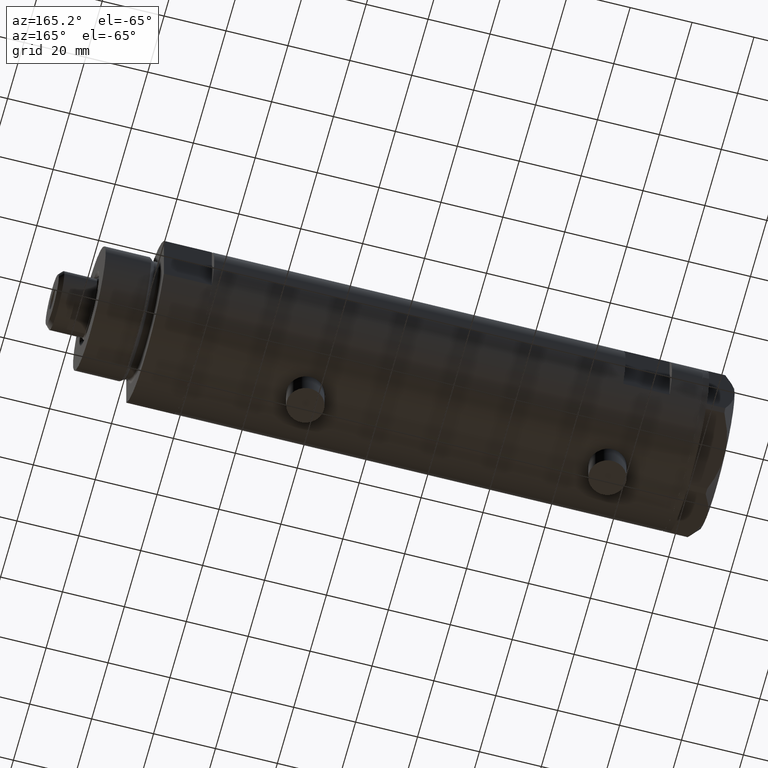
[diagram: clean part render]
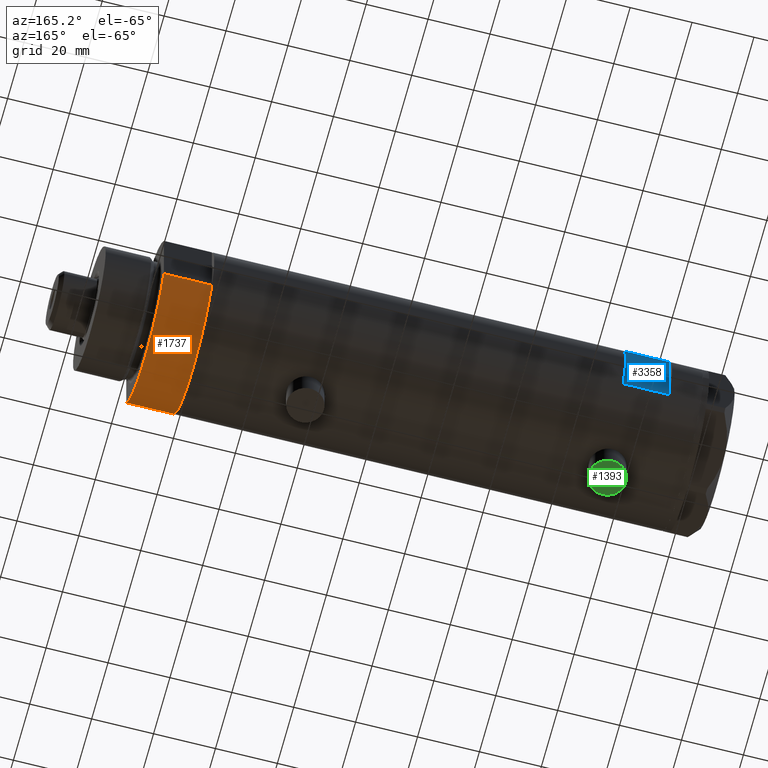
[diagram: same view with three faces highlighted in distinct colors, each labeled with its STEP entity id]
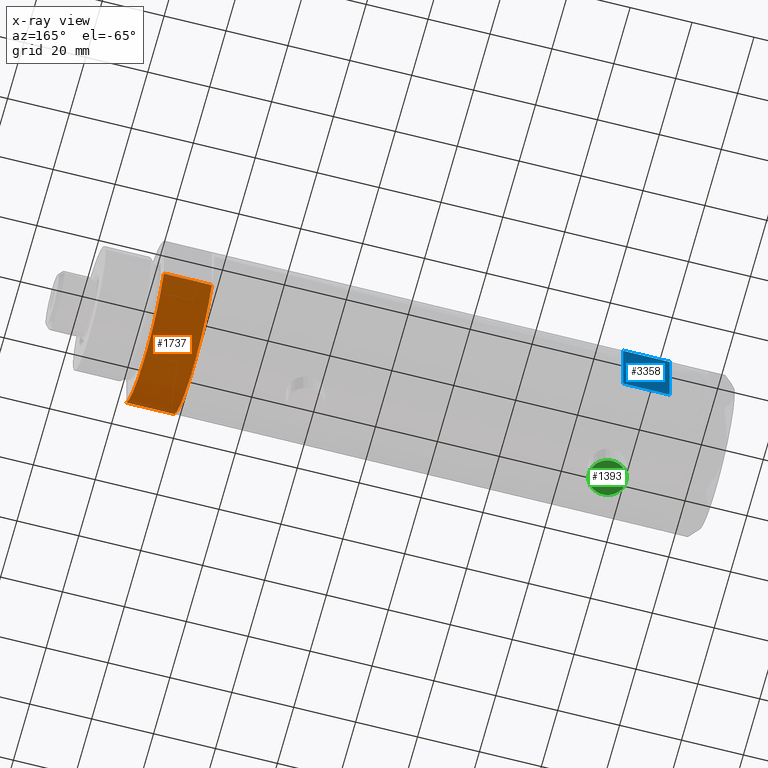
[diagram: x-ray of the same camera — body ghosted, the three highlighted faces saturated]
A machine part, auxiliary view with three faces highlighted in distinct colors.
The next image is the same camera in x-ray (body ghosted, the three faces saturated) — at least one of them is partly hidden behind the body in this view.
Their STEP definitions:

[orange] entity #1737 — the highlighted cylindrical surface (partial cylindrical patch) has radius 26 mm, axis along (-1, -0, 0).
#106 = ORIENTED_EDGE ( 'NONE', *, *, #2919, .F. ) ;
#160 = DIRECTION ( 'NONE',  ( 0.000000000000000000, 0.000000000000000000, 1.000000000000000000 ) ) ;
#229 = VERTEX_POINT ( 'NONE', #1976 ) ;
#250 = CARTESIAN_POINT ( 'NONE',  ( 12.12435565298215323, -22.99999999999999645, 0.000000000000000000 ) ) ;
#261 = DIRECTION ( 'NONE',  ( -0.000000000000000000, -0.000000000000000000, 1.000000000000000000 ) ) ;
#270 = ORIENTED_EDGE ( 'NONE', *, *, #3123, .T. ) ;
#468 = EDGE_LOOP ( 'NONE', ( #106, #4236, #270, #4411 ) ) ;
#522 = DIRECTION ( 'NONE',  ( -1.000000000000000000, 0.000000000000000000, 0.000000000000000000 ) ) ;
#602 = CIRCLE ( 'NONE', #4742, 26.00000000000000355 ) ;
#623 = CARTESIAN_POINT ( 'NONE',  ( 12.12435565298215323, -22.99999999999999645, 15.50000000000000000 ) ) ;
#900 = LINE ( 'NONE', #250, #2632 ) ;
#921 = DIRECTION ( 'NONE',  ( -0.000000000000000000, -0.000000000000000000, -1.000000000000000000 ) ) ;
#1030 = LINE ( 'NONE', #1342, #3343 ) ;
#1342 = CARTESIAN_POINT ( 'NONE',  ( 12.12435565298215323, 23.00000000000000355, 0.000000000000000000 ) ) ;
#1693 = CIRCLE ( 'NONE', #2715, 26.00000000000000355 ) ;
#1711 = EDGE_CURVE ( 'NONE', #2786, #2482, #900, .T. ) ;
#1737 = ADVANCED_FACE ( 'NONE', ( #1966 ), #4722, .T. ) ;
#1966 = FACE_OUTER_BOUND ( 'NONE', #468, .T. ) ;
#1976 = CARTESIAN_POINT ( 'NONE',  ( 12.12435565298214080, 23.00000000000000355, 0.000000000000000000 ) ) ;
#2081 = AXIS2_PLACEMENT_3D ( 'NONE', #3209, #921, #522 ) ;
#2469 = CARTESIAN_POINT ( 'NONE',  ( 0.000000000000000000, 0.000000000000000000, 15.50000000000000000 ) ) ;
#2482 = VERTEX_POINT ( 'NONE', #623 ) ;
#2523 = DIRECTION ( 'NONE',  ( 1.000000000000000000, 0.000000000000000000, 0.000000000000000000 ) ) ;
#2632 = VECTOR ( 'NONE', #4843, 1000.000000000000000 ) ;
#2715 = AXIS2_PLACEMENT_3D ( 'NONE', #4855, #4488, #2523 ) ;
#2786 = VERTEX_POINT ( 'NONE', #4589 ) ;
#2919 = EDGE_CURVE ( 'NONE', #2482, #4682, #602, .T. ) ;
#3123 = EDGE_CURVE ( 'NONE', #2786, #229, #1693, .T. ) ;
#3209 = CARTESIAN_POINT ( 'NONE',  ( 0.000000000000000000, 0.000000000000000000, 15.50000000000000000 ) ) ;
#3343 = VECTOR ( 'NONE', #261, 1000.000000000000000 ) ;
#3700 = CARTESIAN_POINT ( 'NONE',  ( 12.12435565298214790, 23.00000000000000355, 15.50000000000000000 ) ) ;
#3952 = DIRECTION ( 'NONE',  ( 1.000000000000000000, 0.000000000000000000, 0.000000000000000000 ) ) ;
#4236 = ORIENTED_EDGE ( 'NONE', *, *, #1711, .F. ) ;
#4411 = ORIENTED_EDGE ( 'NONE', *, *, #4541, .T. ) ;
#4488 = DIRECTION ( 'NONE',  ( 0.000000000000000000, 0.000000000000000000, 1.000000000000000000 ) ) ;
#4541 = EDGE_CURVE ( 'NONE', #229, #4682, #1030, .T. ) ;
#4589 = CARTESIAN_POINT ( 'NONE',  ( 12.12435565298215323, -22.99999999999999645, 0.000000000000000000 ) ) ;
#4682 = VERTEX_POINT ( 'NONE', #3700 ) ;
#4722 = CYLINDRICAL_SURFACE ( 'NONE', #2081, 26.00000000000000355 ) ;
#4742 = AXIS2_PLACEMENT_3D ( 'NONE', #2469, #160, #3952 ) ;
#4843 = DIRECTION ( 'NONE',  ( -0.000000000000000000, -0.000000000000000000, 1.000000000000000000 ) ) ;
#4855 = CARTESIAN_POINT ( 'NONE',  ( 0.000000000000000000, 0.000000000000000000, 0.000000000000000000 ) ) ;

[blue] entity #3358 — the highlighted planar face has unit normal (0, -1, -0).
#147 = LINE ( 'NONE', #2046, #4565 ) ;
#197 = DIRECTION ( 'NONE',  ( 1.000000000000000000, -0.000000000000000000, -0.000000000000000000 ) ) ;
#198 = VECTOR ( 'NONE', #1757, 1000.000000000000000 ) ;
#215 = VECTOR ( 'NONE', #501, 1000.000000000000000 ) ;
#255 = ORIENTED_EDGE ( 'NONE', *, *, #4437, .T. ) ;
#411 = VERTEX_POINT ( 'NONE', #4407 ) ;
#501 = DIRECTION ( 'NONE',  ( 0.000000000000000000, 0.000000000000000000, 1.000000000000000000 ) ) ;
#564 = CARTESIAN_POINT ( 'NONE',  ( -12.12435565298214080, 23.00000000000000355, -78.95000000000000284 ) ) ;
#641 = LINE ( 'NONE', #1439, #4436 ) ;
#717 = DIRECTION ( 'NONE',  ( -0.000000000000000000, -0.000000000000000000, -1.000000000000000000 ) ) ;
#835 = EDGE_CURVE ( 'NONE', #955, #411, #147, .T. ) ;
#906 = DIRECTION ( 'NONE',  ( 0.000000000000000000, -1.000000000000000000, -0.000000000000000000 ) ) ;
#934 = FACE_OUTER_BOUND ( 'NONE', #3760, .T. ) ;
#955 = VERTEX_POINT ( 'NONE', #2848 ) ;
#1439 = CARTESIAN_POINT ( 'NONE',  ( 12.12435565298214080, 23.00000000000000355, -78.95000000000000284 ) ) ;
#1496 = ORIENTED_EDGE ( 'NONE', *, *, #835, .T. ) ;
#1603 = CARTESIAN_POINT ( 'NONE',  ( -12.12435565298214080, 23.00000000000000355, 53.95000000000002416 ) ) ;
#1753 = DIRECTION ( 'NONE',  ( 0.000000000000000000, 0.000000000000000000, -1.000000000000000000 ) ) ;
#1757 = DIRECTION ( 'NONE',  ( 1.000000000000000000, -0.000000000000000000, -0.000000000000000000 ) ) ;
#1858 = AXIS2_PLACEMENT_3D ( 'NONE', #2835, #906, #1753 ) ;
#2046 = CARTESIAN_POINT ( 'NONE',  ( -26.00000000000000355, 23.00000000000000355, 68.95000000000003126 ) ) ;
#2106 = VERTEX_POINT ( 'NONE', #1603 ) ;
#2110 = CARTESIAN_POINT ( 'NONE',  ( -26.00000000000000355, 23.00000000000000355, 53.95000000000002416 ) ) ;
#2349 = CARTESIAN_POINT ( 'NONE',  ( 12.12435565298213724, 23.00000000000000355, 53.95000000000002416 ) ) ;
#2738 = LINE ( 'NONE', #564, #215 ) ;
#2835 = CARTESIAN_POINT ( 'NONE',  ( -26.00000000000000355, 23.00000000000000355, 68.95000000000003126 ) ) ;
#2848 = CARTESIAN_POINT ( 'NONE',  ( -12.12435565298214080, 23.00000000000000355, 68.95000000000003126 ) ) ;
#2885 = EDGE_CURVE ( 'NONE', #2106, #4070, #3981, .T. ) ;
#3358 = ADVANCED_FACE ( 'NONE', ( #934 ), #4346, .F. ) ;
#3760 = EDGE_LOOP ( 'NONE', ( #255, #4262, #4861, #1496 ) ) ;
#3981 = LINE ( 'NONE', #2110, #198 ) ;
#4070 = VERTEX_POINT ( 'NONE', #2349 ) ;
#4262 = ORIENTED_EDGE ( 'NONE', *, *, #2885, .F. ) ;
#4346 = PLANE ( 'NONE',  #1858 ) ;
#4407 = CARTESIAN_POINT ( 'NONE',  ( 12.12435565298214080, 23.00000000000000355, 68.95000000000003126 ) ) ;
#4436 = VECTOR ( 'NONE', #717, 1000.000000000000000 ) ;
#4437 = EDGE_CURVE ( 'NONE', #411, #4070, #641, .T. ) ;
#4565 = VECTOR ( 'NONE', #197, 1000.000000000000000 ) ;
#4861 = ORIENTED_EDGE ( 'NONE', *, *, #4864, .T. ) ;
#4864 = EDGE_CURVE ( 'NONE', #2106, #955, #2738, .T. ) ;

[green] entity #1393 — the highlighted planar face has unit normal (-0, 0, -1).
#191 = AXIS2_PLACEMENT_3D ( 'NONE', #4406, #1063, #1769 ) ;
#492 = DIRECTION ( 'NONE',  ( 0.000000000000000000, 0.000000000000000000, 1.000000000000000000 ) ) ;
#505 = AXIS2_PLACEMENT_3D ( 'NONE', #892, #2378, #492 ) ;
#683 = VERTEX_POINT ( 'NONE', #3447 ) ;
#741 = VERTEX_POINT ( 'NONE', #2597 ) ;
#892 = CARTESIAN_POINT ( 'NONE',  ( -33.39999999999999858, 0.000000000000000000, 54.95000000000000284 ) ) ;
#1063 = DIRECTION ( 'NONE',  ( -1.000000000000000000, 0.000000000000000000, 0.000000000000000000 ) ) ;
#1393 = ADVANCED_FACE ( 'NONE', ( #4200 ), #3830, .T. ) ;
#1543 = AXIS2_PLACEMENT_3D ( 'NONE', #2836, #2468, #4744 ) ;
#1674 = CIRCLE ( 'NONE', #191, 5.999999999999998224 ) ;
#1769 = DIRECTION ( 'NONE',  ( 0.000000000000000000, 0.000000000000000000, 1.000000000000000000 ) ) ;
#1914 = ORIENTED_EDGE ( 'NONE', *, *, #1986, .T. ) ;
#1986 = EDGE_CURVE ( 'NONE', #683, #741, #1674, .T. ) ;
#2251 = EDGE_LOOP ( 'NONE', ( #3168, #1914 ) ) ;
#2378 = DIRECTION ( 'NONE',  ( -1.000000000000000000, 0.000000000000000000, 0.000000000000000000 ) ) ;
#2468 = DIRECTION ( 'NONE',  ( -1.000000000000000000, 0.000000000000000000, 0.000000000000000000 ) ) ;
#2597 = CARTESIAN_POINT ( 'NONE',  ( -33.39999999999999858, 0.000000000000000000, 48.95000000000000995 ) ) ;
#2836 = CARTESIAN_POINT ( 'NONE',  ( -33.39999999999999858, 0.000000000000000000, 54.95000000000000284 ) ) ;
#2883 = CIRCLE ( 'NONE', #1543, 5.999999999999998224 ) ;
#3168 = ORIENTED_EDGE ( 'NONE', *, *, #4577, .T. ) ;
#3447 = CARTESIAN_POINT ( 'NONE',  ( -33.39999999999999858, 7.347880794884107903E-16, 60.95000000000000284 ) ) ;
#3830 = PLANE ( 'NONE',  #505 ) ;
#4200 = FACE_OUTER_BOUND ( 'NONE', #2251, .T. ) ;
#4406 = CARTESIAN_POINT ( 'NONE',  ( -33.39999999999999858, 0.000000000000000000, 54.95000000000000284 ) ) ;
#4577 = EDGE_CURVE ( 'NONE', #741, #683, #2883, .T. ) ;
#4744 = DIRECTION ( 'NONE',  ( 0.000000000000000000, 0.000000000000000000, 1.000000000000000000 ) ) ;